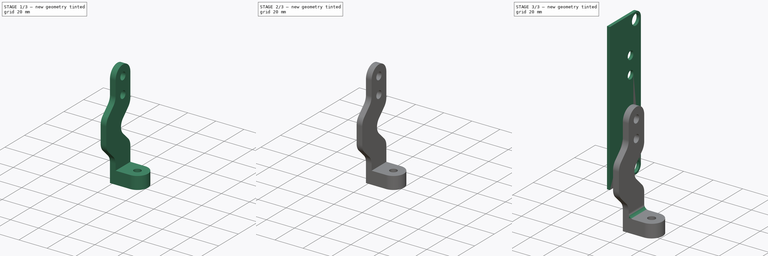
[diagram: build sequence overview — one tinted view per stage of 3, left to right]
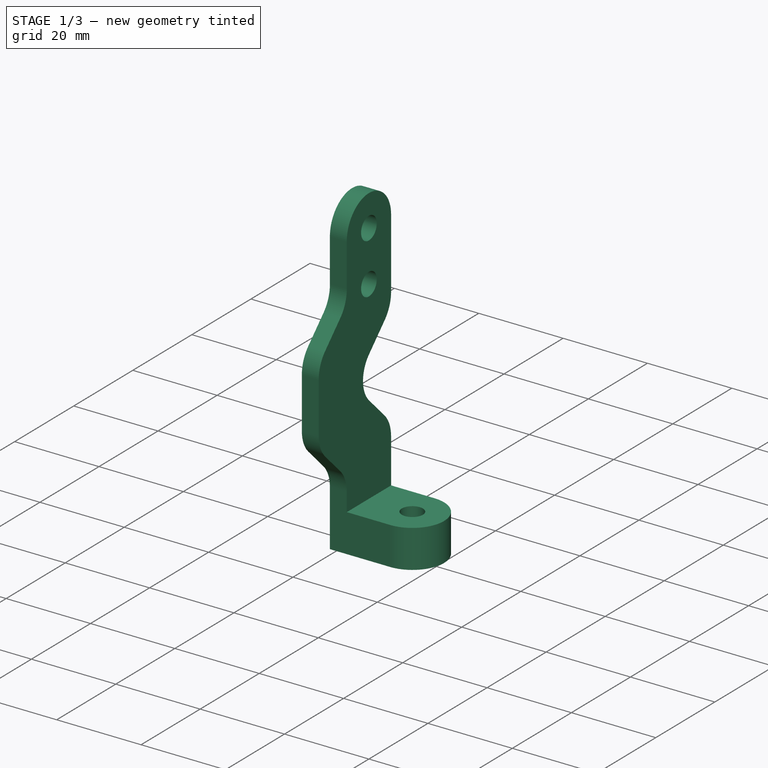
[diagram: stage 1 of 3 — iso view after this stage's code; geometry added in this stage tinted green]
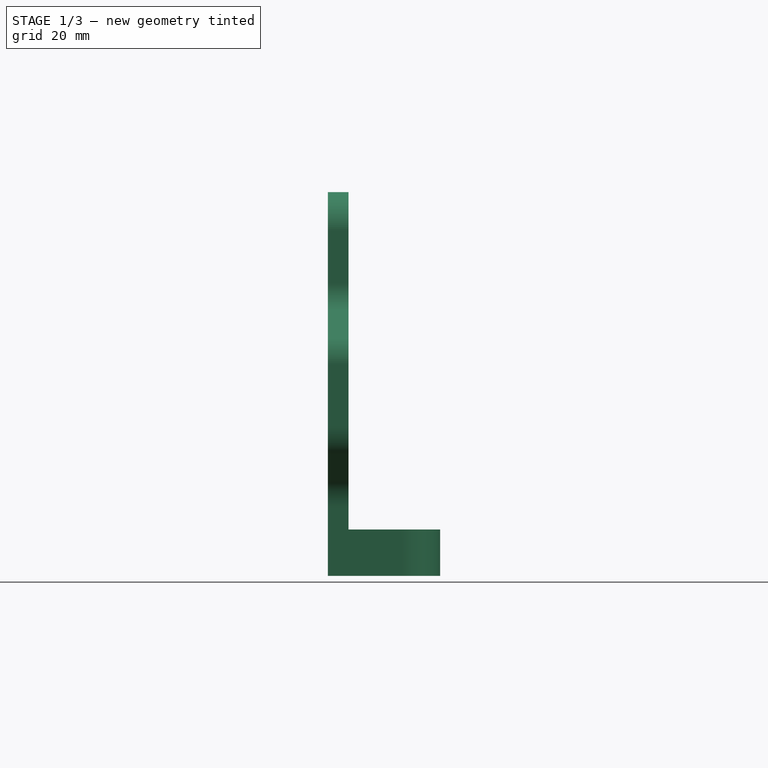
[diagram: stage 1 of 3 — front view after this stage's code; geometry added in this stage tinted green]
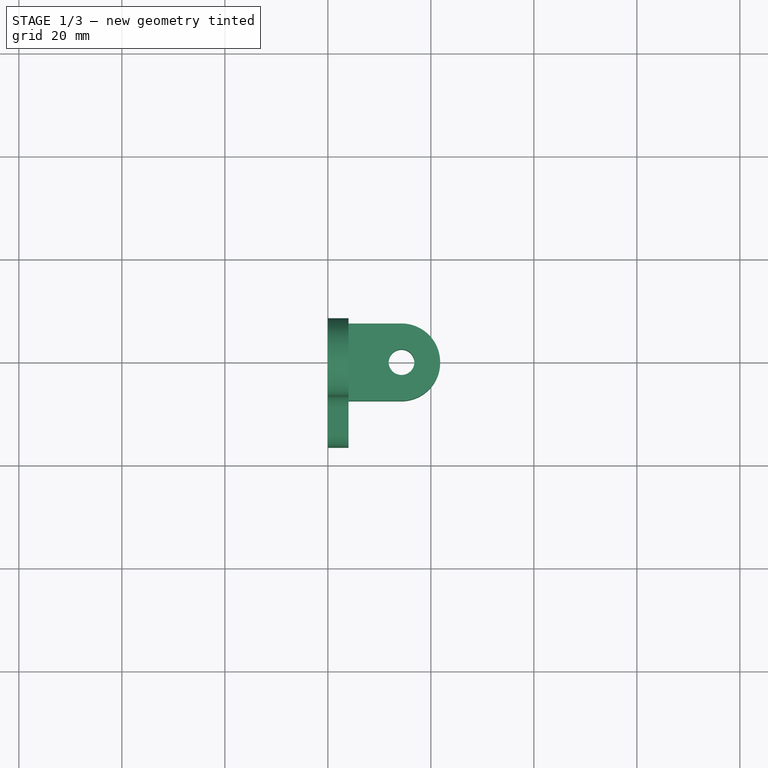
[diagram: stage 1 of 3 — top view after this stage's code; geometry added in this stage tinted green]
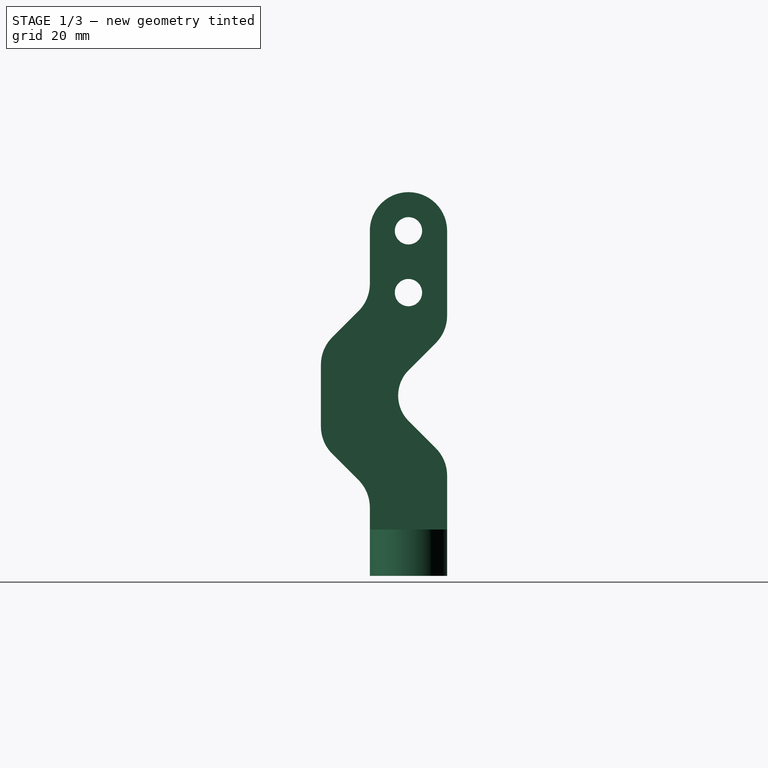
[diagram: stage 1 of 3 — right view after this stage's code; geometry added in this stage tinted green]
FCSTD DOCUMENT  (FreeCAD 0.14R3702 (Git))
Label: MM3-Adjustable-Z
License: CC-BY 3.0
LicenseURL: http://creativecommons.org/licenses/by/3.0/
objects: Sketcher::SketchObject×4, PartDesign::Pad×3, PartDesign::Pocket×1, PartDesign::Fillet×1
note: 13 computed .brp shape members not serialized (recipe doc carries the construction recipe); baked Part::Feature solids carry a one-line shape summary decoded from their .brp

FEATURE [Sketcher::SketchObject] Sketch001
  Placement = pos=(0,0,0) rot=(0.57735,0.57735,0.57735;2.0944rad)
  sketch-geometry (20):
    g0: LineSegment StartX=-7.5 StartY=67 StartZ=0 EndX=-7.5 EndY=56.7193 EndZ=0
    g1: LineSegment StartX=-7.5 StartY=0 StartZ=0 EndX=7.5 EndY=0 EndZ=0
    g2: LineSegment StartX=7.5 StartY=0 StartZ=0 EndX=7.5 EndY=19.4939 EndZ=0
    g3: LineSegment StartX=5.3033 StartY=24.7972 StartZ=0 EndX=0.0502525 EndY=30.0503 EndZ=0
    g4: LineSegment StartX=0.0502525 StartY=39.9497 StartZ=0 EndX=5.3033 EndY=45.2028 EndZ=0
    g5: LineSegment StartX=7.5 StartY=50.5061 StartZ=0 EndX=7.5 EndY=67 EndZ=0
    g6: ArcOfCircle CenterX=5 CenterY=35 CenterZ=0 NormalX=0 NormalY=0 NormalZ=1 Radius=7 StartAngle=2.35619 EndAngle=3.92699
    g7: ArcOfCircle CenterX=0 CenterY=67 CenterZ=0 NormalX=0 NormalY=0 NormalZ=1 Radius=7.5 StartAngle=0 EndAngle=3.14159
    g8: Circle CenterX=0 CenterY=67 CenterZ=0 NormalX=0 NormalY=0 NormalZ=1 Radius=2.65
    g9: Circle CenterX=0 CenterY=55 CenterZ=0 NormalX=0 NormalY=0 NormalZ=1 Radius=2.65
    g10: LineSegment StartX=-7.5 StartY=13.2807 StartZ=0 EndX=-7.5 EndY=0 EndZ=0
    g11: LineSegment StartX=-14.8033 StartY=23.6906 StartZ=0 EndX=-9.6967 EndY=18.584 EndZ=0
    g12: LineSegment StartX=-9.6967 StartY=51.416 StartZ=0 EndX=-14.8033 EndY=46.3094 EndZ=0
    g13: ArcOfCircle CenterX=-15 CenterY=56.7193 CenterZ=0 NormalX=0 NormalY=0 NormalZ=1 Radius=7.5 StartAngle=5.49779 EndAngle=6.28319
    g14: ArcOfCircle CenterX=0 CenterY=50.5061 CenterZ=0 NormalX=0 NormalY=0 NormalZ=1 Radius=7.5 StartAngle=5.49779 EndAngle=6.28319
    g15: ArcOfCircle CenterX=1e-12 CenterY=19.4939 CenterZ=0 NormalX=0 NormalY=0 NormalZ=1 Radius=7.5 StartAngle=0 EndAngle=0.785398
    g16: ArcOfCircle CenterX=-15 CenterY=13.2807 CenterZ=0 NormalX=0 NormalY=0 NormalZ=1 Radius=7.5 StartAngle=0 EndAngle=0.785398
    g17: LineSegment StartX=-17 StartY=41.0061 StartZ=0 EndX=-17 EndY=28.9939 EndZ=0
    g18: ArcOfCircle CenterX=-9.5 CenterY=41.0061 CenterZ=0 NormalX=0 NormalY=0 NormalZ=1 Radius=7.5 StartAngle=2.35619 EndAngle=3.14159
    g19: ArcOfCircle CenterX=-9.5 CenterY=28.9939 CenterZ=0 NormalX=0 NormalY=0 NormalZ=1 Radius=7.5 StartAngle=3.14159 EndAngle=3.92699
  constraints (49):
    c: Vertical(g0)
    c: Coincident(g10,g1)
    c: Horizontal(g1)
    c: Coincident(g1,g2)
    c: Vertical(g5)
    c: PointOnObject(g8,g-2)
    c: PointOnObject(g9,g-2)
    c: DistanceY(g-1,g9) = 55
    c: DistanceY(g8,g9) = -12
    c: Radius(g8) = 2.65
    c: Equal(g8,g9)
    c: DistanceY(g-1,g6) = 35
    c: DistanceX(g-1,g6) = 5
    c: Tangent(g6,g3)
    c: Tangent(g4,g6)
    c: Radius(g6) = 7
    c: Coincident(g8,g7)
    c: Tangent(g5,g7)
    c: Tangent(g0,g7)
    c: Radius(g7) = 7.5
    c: Equal(g4,g3)
    c: PointOnObject(g1,g-1)
    c: Angle(g5,g4) = 2.35619
    c: Angle(g3,g2) = 2.35619
    c: Parallel(g12,g4)
    c: Parallel(g11,g3)
    c: Tangent(g10,g0)
    c: Tangent(g0,g13)
    c: Tangent(g12,g13)
    c: Tangent(g4,g14)
    c: Tangent(g5,g14)
    c: Tangent(g2,g15)
    c: Tangent(g3,g15)
    c: Tangent(g10,g16)
    c: Tangent(g11,g16)
    c: Vertical(g17)
    c: Distance(g6,g17) = 22
    c: Tangent(g12,g18)
    c: Tangent(g17,g18)
    c: Tangent(g11,g19)
    c: Tangent(g17,g19)
    c: Distance(g4,g12) = 15
    c: Radius(g14) = 7.5
    c: Tangent(g2,g5)
    c: Equal(g13,g14)
    c: Equal(g18,g13)
    c: Equal(g19,g18)
    c: Equal(g16,g19)
    c: Distance(g11,g3) = 15
FEATURE [PartDesign::Pad] Pad001
  Length = 4
  Length2 = 100
  Placement = pos=(0,0,0) rot=(0.57735,0.57735,0.57735;2.0944rad)
  Sketch = -> Sketch001
  Type = 0
FEATURE [Sketcher::SketchObject] Sketch002
  ExternalGeometry = -> [Pad001]
  Placement = pos=(0,0,0) rot=(0.707107,0.707107,0;3.14159rad)
  Support = -> Pad001 [Face14]
  sketch-geometry (5):
    g0: LineSegment StartX=-7.5 StartY=14.3 StartZ=0 EndX=-7.5 EndY=4 EndZ=0
    g1: LineSegment StartX=-7.5 StartY=4 StartZ=0 EndX=7.5 EndY=4 EndZ=0
    g2: LineSegment StartX=7.5 StartY=4 StartZ=0 EndX=7.5 EndY=14.3 EndZ=0
    g3: ArcOfCircle CenterX=0 CenterY=14.3 CenterZ=0 NormalX=0 NormalY=0 NormalZ=1 Radius=7.5 StartAngle=0 EndAngle=3.14159
    g4: Circle CenterX=0 CenterY=14.3 CenterZ=0 NormalX=0 NormalY=0 NormalZ=1 Radius=2.5
  constraints (12):
    c: Vertical(g0)
    c: Coincident(g0,g1)
    c: Horizontal(g1)
    c: Coincident(g1,g2)
    c: Vertical(g2)
    c: Tangent(g3,g2)
    c: Tangent(g3,g0)
    c: Coincident(g1,g-3)
    c: Coincident(g0,g-3)
    c: DistanceY(g-1,g3) = 14.3
    c: Radius(g4) = 2.5
    c: Coincident(g4,g3)
FEATURE [PartDesign::Pad] Pad002
  Length = 9
  Length2 = 100
  Placement = pos=(0,0,0) rot=(0.57735,0.57735,0.57735;2.0944rad)
  Reversed = true
  Sketch = -> Sketch002
  Type = 0
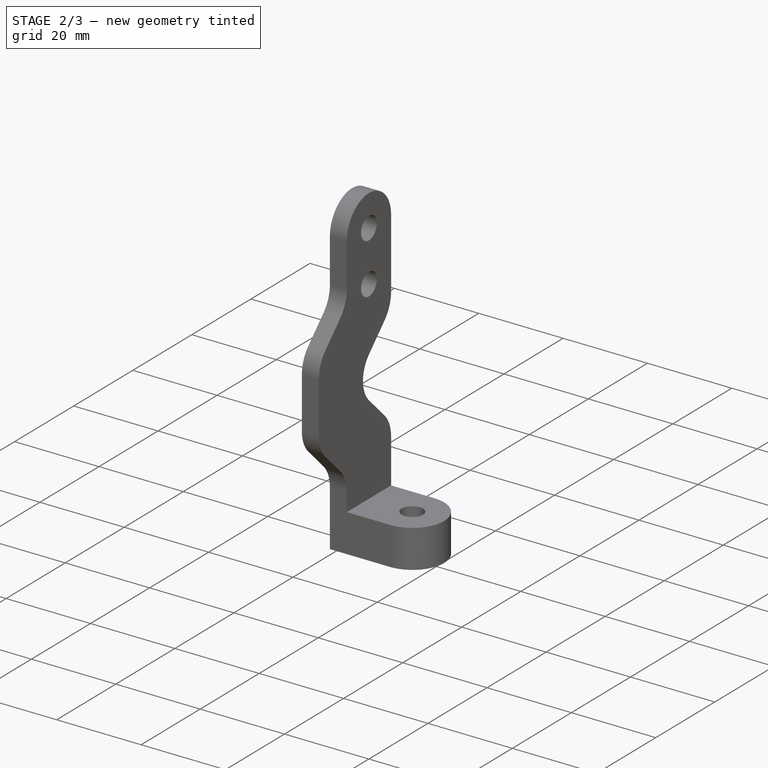
[diagram: stage 2 of 3 — iso view after this stage's code; geometry added in this stage tinted green]
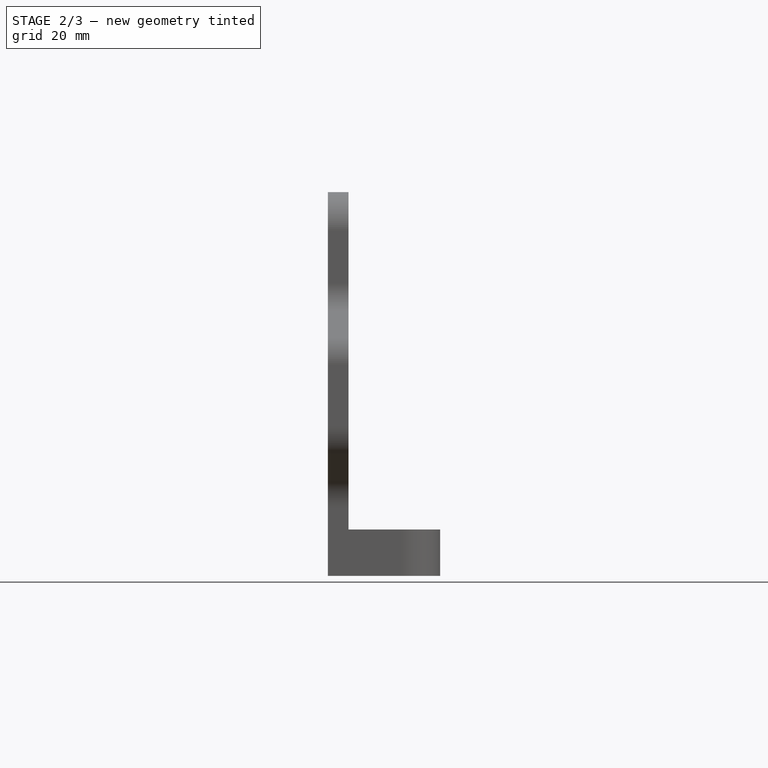
[diagram: stage 2 of 3 — front view after this stage's code; geometry added in this stage tinted green]
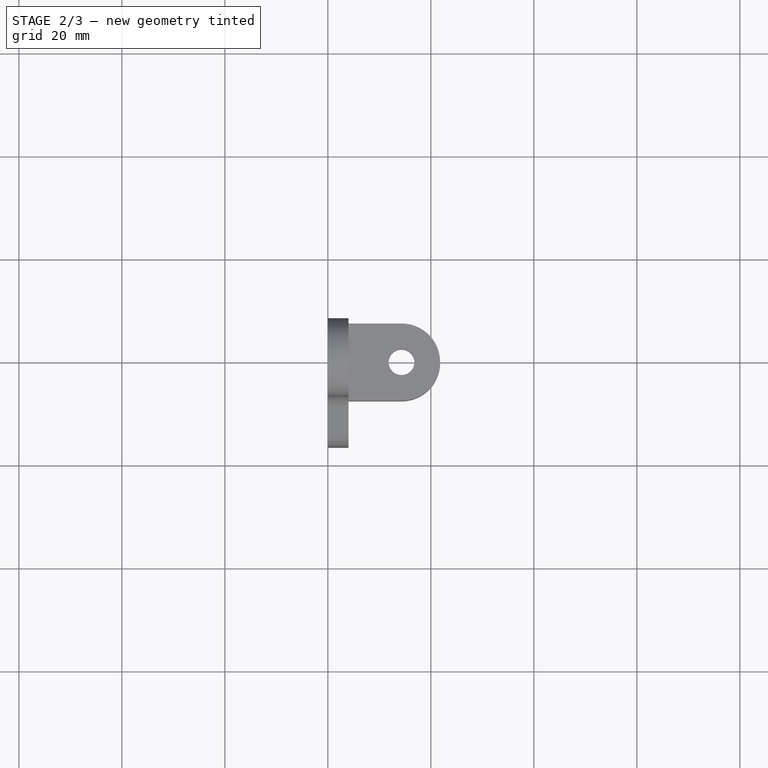
[diagram: stage 2 of 3 — top view after this stage's code; geometry added in this stage tinted green]
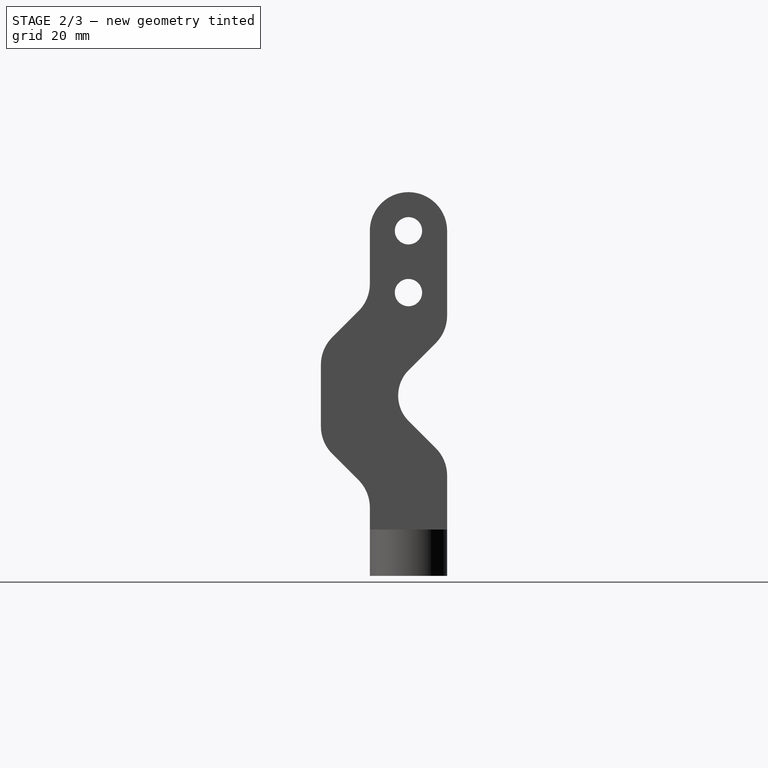
[diagram: stage 2 of 3 — right view after this stage's code; geometry added in this stage tinted green]
FEATURE [Sketcher::SketchObject] Sketch003
  ExternalGeometry = -> [Pad002]
  Placement = pos=(0,0,0) rot=(0.707107,0.707107,0;3.14159rad)
  Support = -> Pad002 [Face25]
  sketch-geometry (7):
    g0: Circle [constr] CenterX=0 CenterY=14.3 CenterZ=0 NormalX=0 NormalY=0 NormalZ=1 Radius=4
    g1: LineSegment StartX=-4 StartY=11.9906 StartZ=0 EndX=-4 EndY=16.6094 EndZ=0
    g2: LineSegment StartX=-4 StartY=16.6094 StartZ=0 EndX=0 EndY=18.9188 EndZ=0
    g3: LineSegment StartX=0 StartY=18.9188 StartZ=0 EndX=4 EndY=16.6094 EndZ=0
    g4: LineSegment StartX=4 StartY=16.6094 StartZ=0 EndX=4 EndY=11.9906 EndZ=0
    g5: LineSegment StartX=4 StartY=11.9906 StartZ=0 EndX=0 EndY=9.6812 EndZ=0
    g6: LineSegment StartX=0 StartY=9.6812 StartZ=0 EndX=-4 EndY=11.9906 EndZ=0
  constraints (21):
    c: Coincident(g0,g-3)
    c: Radius(g0) = 4
    c: Vertical(g1)
    c: Tangent(g1,g0)
    c: Coincident(g1,g2)
    c: Tangent(g2,g0)
    c: Coincident(g2,g3)
    c: Tangent(g3,g0)
    c: Coincident(g3,g4)
    c: Tangent(g4,g0)
    c: Coincident(g4,g5)
    c: Tangent(g5,g0)
    c: Coincident(g5,g6)
    c: Tangent(g6,g0)
    c: Coincident(g1,g6)
    c: Vertical(g4)
    c: Equal(g2,g3)
    c: Equal(g3,g4)
    c: Equal(g4,g5)
    c: Equal(g5,g6)
    c: Equal(g6,g1)
FEATURE [PartDesign::Pocket] Pocket
  Length = 3
  Placement = pos=(0,0,0) rot=(0.57735,0.57735,0.57735;2.0944rad)
  Sketch = -> Sketch003
  Type = 0
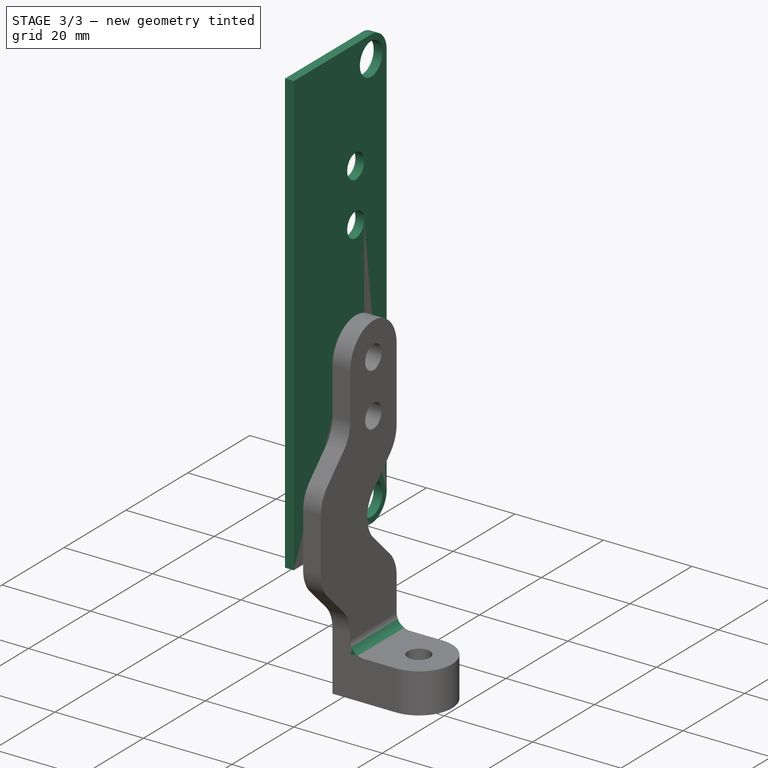
[diagram: stage 3 of 3 — iso view after this stage's code; geometry added in this stage tinted green]
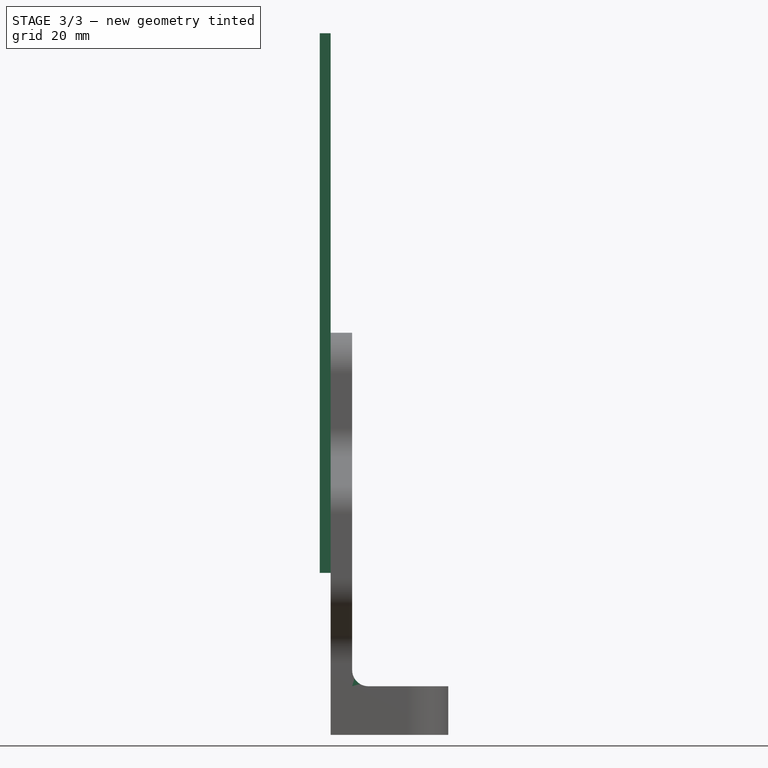
[diagram: stage 3 of 3 — front view after this stage's code; geometry added in this stage tinted green]
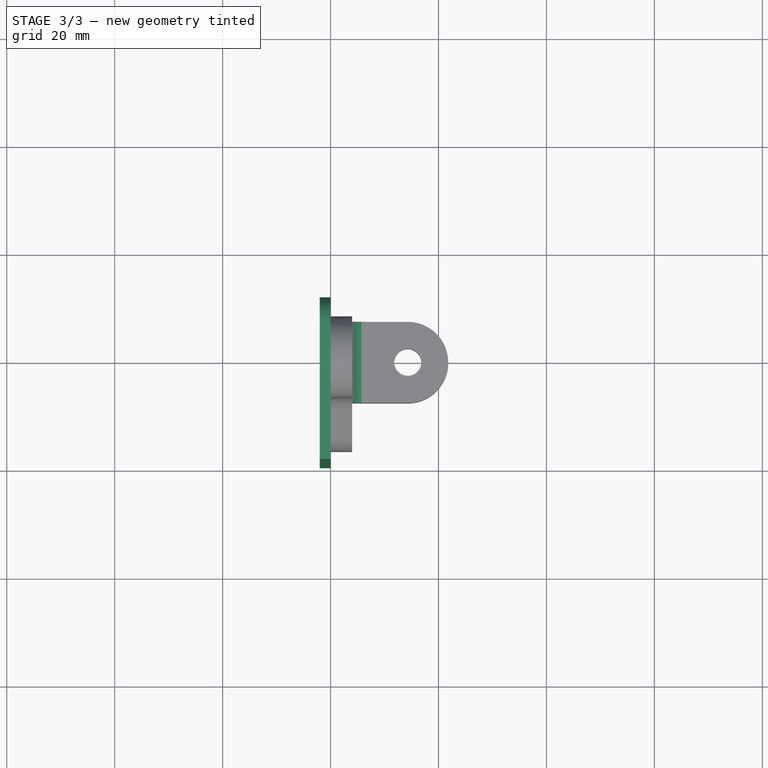
[diagram: stage 3 of 3 — top view after this stage's code; geometry added in this stage tinted green]
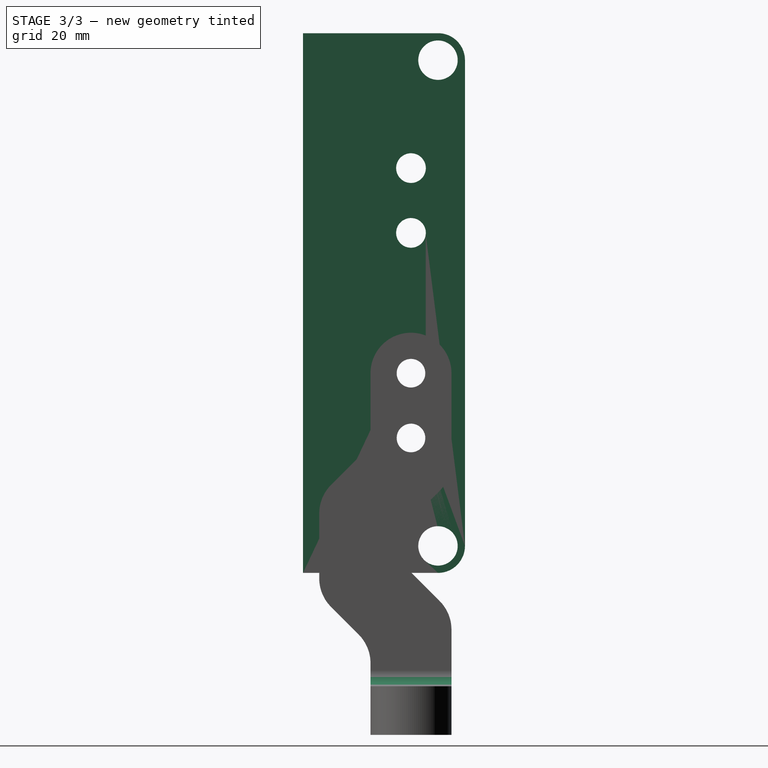
[diagram: stage 3 of 3 — right view after this stage's code; geometry added in this stage tinted green]
FEATURE [Sketcher::SketchObject] Sketch
  Placement = pos=(0,0,0) rot=(0.57735,0.57735,0.57735;2.0944rad)
  sketch-geometry (12):
    g0: LineSegment StartX=-20 StartY=30 StartZ=0 EndX=5 EndY=30 EndZ=0
    g1: LineSegment StartX=10 StartY=35 StartZ=0 EndX=10 EndY=125 EndZ=0
    g2: LineSegment StartX=5 StartY=130 StartZ=0 EndX=-20 EndY=130 EndZ=0
    g3: LineSegment StartX=-20 StartY=130 StartZ=0 EndX=-20 EndY=30 EndZ=0
    g4: ArcOfCircle CenterX=5 CenterY=35 CenterZ=0 NormalX=0 NormalY=0 NormalZ=1 Radius=5 StartAngle=4.71239 EndAngle=6.28319
    g5: ArcOfCircle CenterX=5 CenterY=125 CenterZ=0 NormalX=0 NormalY=0 NormalZ=1 Radius=5 StartAngle=0 EndAngle=1.5708
    g6: Circle CenterX=0 CenterY=105 CenterZ=0 NormalX=0 NormalY=0 NormalZ=1 Radius=2.75
    g7: Circle CenterX=0 CenterY=93 CenterZ=0 NormalX=0 NormalY=0 NormalZ=1 Radius=2.75
    g8: Circle CenterX=0 CenterY=67 CenterZ=0 NormalX=0 NormalY=0 NormalZ=1 Radius=2.75
    g9: Circle CenterX=0 CenterY=55 CenterZ=0 NormalX=0 NormalY=0 NormalZ=1 Radius=2.75
    g10: Circle CenterX=5 CenterY=125 CenterZ=0 NormalX=0 NormalY=0 NormalZ=1 Radius=3.65
    g11: Circle CenterX=5 CenterY=35 CenterZ=0 NormalX=0 NormalY=0 NormalZ=1 Radius=3.65
  constraints (32):
    c: Coincident(g2,g3)
    c: Coincident(g3,g0)
    c: Horizontal(g0)
    c: Horizontal(g2)
    c: Vertical(g1)
    c: Vertical(g3)
    c: Tangent(g0,g4)
    c: Tangent(g1,g4)
    c: Tangent(g1,g5)
    c: Tangent(g2,g5)
    c: DistanceY(g-1,g0) = 30
    c: DistanceY(g3) = -100
    c: Radius(g5) = 5
    c: Radius(g4) = 5
    c: DistanceX(g-1,g2) = -20
    c: DistanceX(g-1,g1) = 10
    c: PointOnObject(g8,g-2)
    c: PointOnObject(g9,g-2)
    c: Radius(g10) = 3.65
    c: Coincident(g10,g5)
    c: PointOnObject(g6,g-2)
    c: PointOnObject(g7,g-2)
    c: Equal(g10,g11)
    c: Coincident(g4,g11)
    c: Radius(g6) = 2.75
    c: Equal(g6,g7)
    c: Equal(g6,g8)
    c: Equal(g6,g9)
    c: Distance(g6,g2) = 25
    c: DistanceY(g6,g7) = -12
    c: DistanceY(g7,g8) = -26
    c: DistanceY(g8,g9) = -12
FEATURE [PartDesign::Pad] Pad  label="Z-Plate"
  Length = 2
  Length2 = 100
  Placement = pos=(0,0,0) rot=(0.57735,0.57735,0.57735;2.0944rad)
  Reversed = true
  Sketch = -> Sketch
  Type = 0
FEATURE [PartDesign::Fillet] Fillet  label="Z-endstop-screw-mount"
  Base = -> Pocket [Edge39]
  Placement = pos=(0,0,0) rot=(0.57735,0.57735,0.57735;2.0944rad)
  Radius = 3
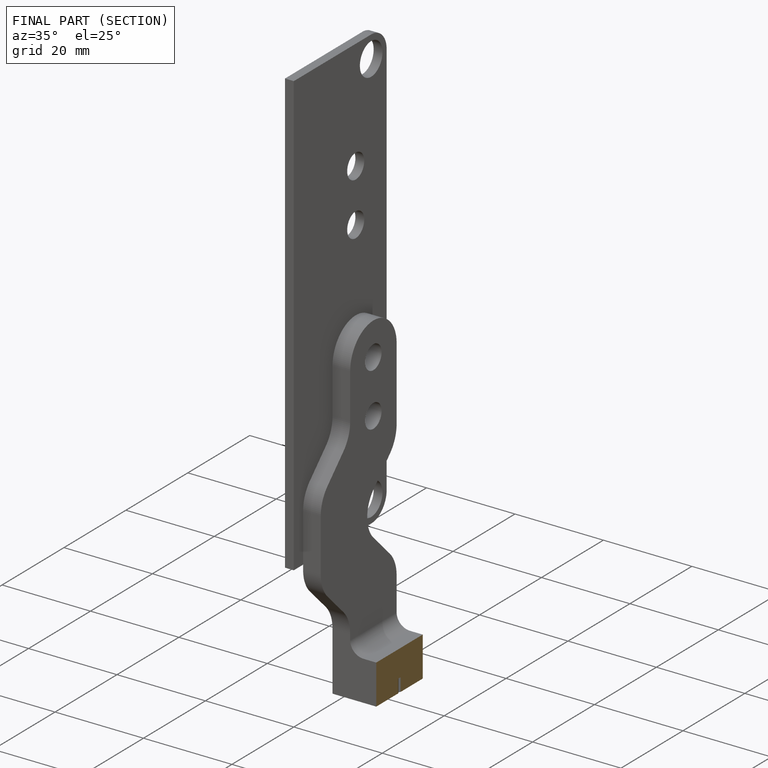
[diagram: finished part — half-section view (interior)]
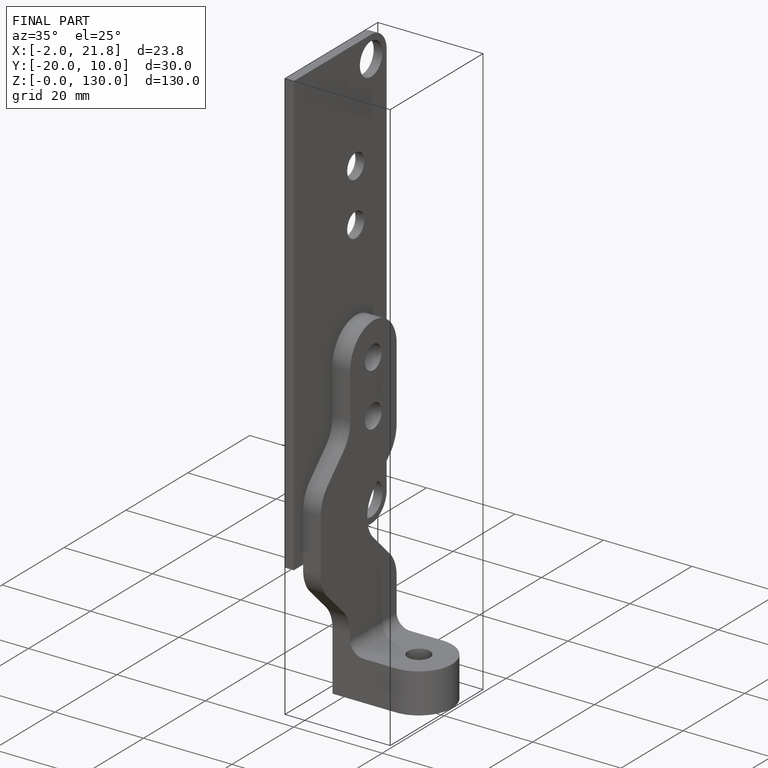
[diagram: finished part — iso view with bounding-box wireframe]
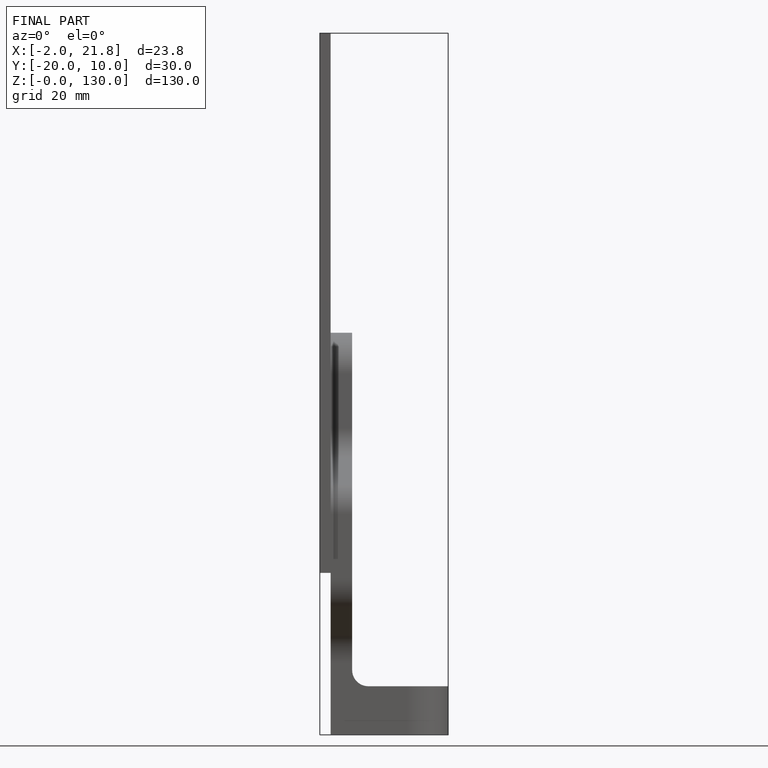
[diagram: finished part — front view with bounding-box wireframe]
